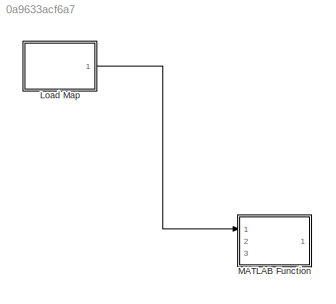
MODEL slx_0a9633acf6a7
KIND model
CONFIG AbsTol = auto
CONFIG EnableMultiTasking = off
CONFIG FixedStep = auto
CONFIG MaxStep = auto
CONFIG MinStep = auto
CONFIG RelTol = 1e-3
CONFIG SampleTimeConstraint = Unconstrained
CONFIG Solver = VariableStepAuto
CONFIG SolverName = VariableStepAuto
CONFIG StartTime = 0.0
CONFIG StopTime = 10.0
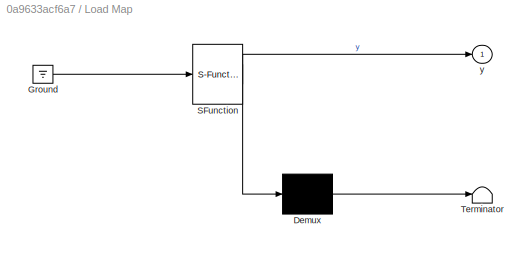
BLOCK [SubSystem] Load Map
  ErrorFcn = Stateflow.Translate.translate
  PermitHierarchicalResolution = ExplicitOnly
  Ports = [0, 1]
  RequestExecContextInheritance = off
  SFBlockType = MATLAB Function
  TreatAsAtomicUnit = on
BLOCK [Demux] Load Map/ Demux 
  Outputs = 1
  Ports = [1, 1]
BLOCK [Ground] Load Map/ Ground 
BLOCK [S-Function] Load Map/ SFunction 
  EnableBusSupport = off
  FunctionName = sf_sfun
  PortCounts = [1 2]
  Ports = [1, 2]
  SFcnIsStateOwnerBlock = off
  SFunctionDeploymentMode = off
  Tag = Stateflow S-Function MapBasedController 1
BLOCK [Terminator] Load Map/ Terminator 
BLOCK [Outport] Load Map/y
  IconDisplay = Port number
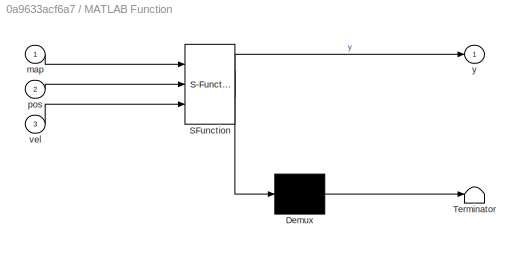
BLOCK [SubSystem] MATLAB Function
  ErrorFcn = Stateflow.Translate.translate
  PermitHierarchicalResolution = ExplicitOnly
  Ports = [3, 1]
  RequestExecContextInheritance = off
  SFBlockType = MATLAB Function
  TreatAsAtomicUnit = on
BLOCK [Demux] MATLAB Function/ Demux 
  Outputs = 1
  Ports = [1, 1]
BLOCK [S-Function] MATLAB Function/ SFunction 
  EnableBusSupport = off
  FunctionName = sf_sfun
  PortCounts = [3 2]
  Ports = [3, 2]
  SFcnIsStateOwnerBlock = off
  SFunctionDeploymentMode = off
  Tag = Stateflow S-Function MapBasedController 2
BLOCK [Terminator] MATLAB Function/ Terminator 
BLOCK [Inport] MATLAB Function/map
  IconDisplay = Port number
BLOCK [Inport] MATLAB Function/pos
  IconDisplay = Port number
  Port = 2
BLOCK [Inport] MATLAB Function/vel
  IconDisplay = Port number
  Port = 3
BLOCK [Outport] MATLAB Function/y
  IconDisplay = Port number
LINE Load Map:1 -> MATLAB Function:1
CHART Load Map states=1 transitions=1
  STATE_LABEL 'eML_blk_kernel()'
  STATE_LABEL "SCRIPT:\nfunction y = fcn()\n    mapData = jsondecode(fileread('./markerdata/map1.json'));\n\n    ix = mapData.inner.x.';\n    iy = mapData.inner.y.';\n    ox = mapData.outer.x.';\n    oy = mapData.outer.y.';\n    \n    i = [ix; iy];\n    o = [ox; oy];\n    \n    u = {i;o};\ny = u;\n"
CHART MATLAB Function states=1 transitions=1
  STATE_LABEL 'eML_blk_kernel()'
  STATE_LABEL "SCRIPT:\nfunction y = turn(map, pos, vel)\n    y = 0; %set y = 0 for no turn\n    for k = 1:size(map, 1)\n        for i = 2:size(map{k}, 2)\n            tx = [map{k}(1, i-1) map{k}(1, i)]; %[mapData.(fields{k}).x(i-1) mapData.(fields{k}).x(i)];\n            ty = [map{k}(2, i-1) map{k}(2, i)]; %[mapData.(fields{k}).y(i-1) mapData.(fields{k}).y(i)];\n            plot(tx, ty, 'b-');\n\n            q = [tx(1);...<+700ch>"
